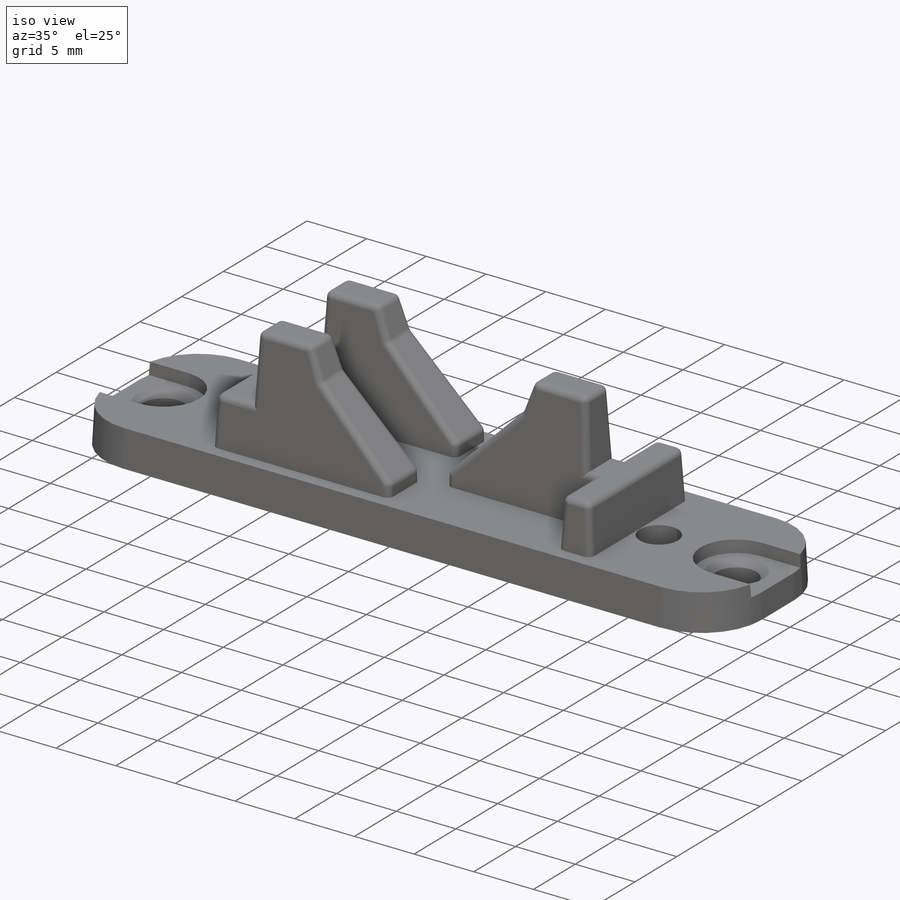
[diagram: iso view]
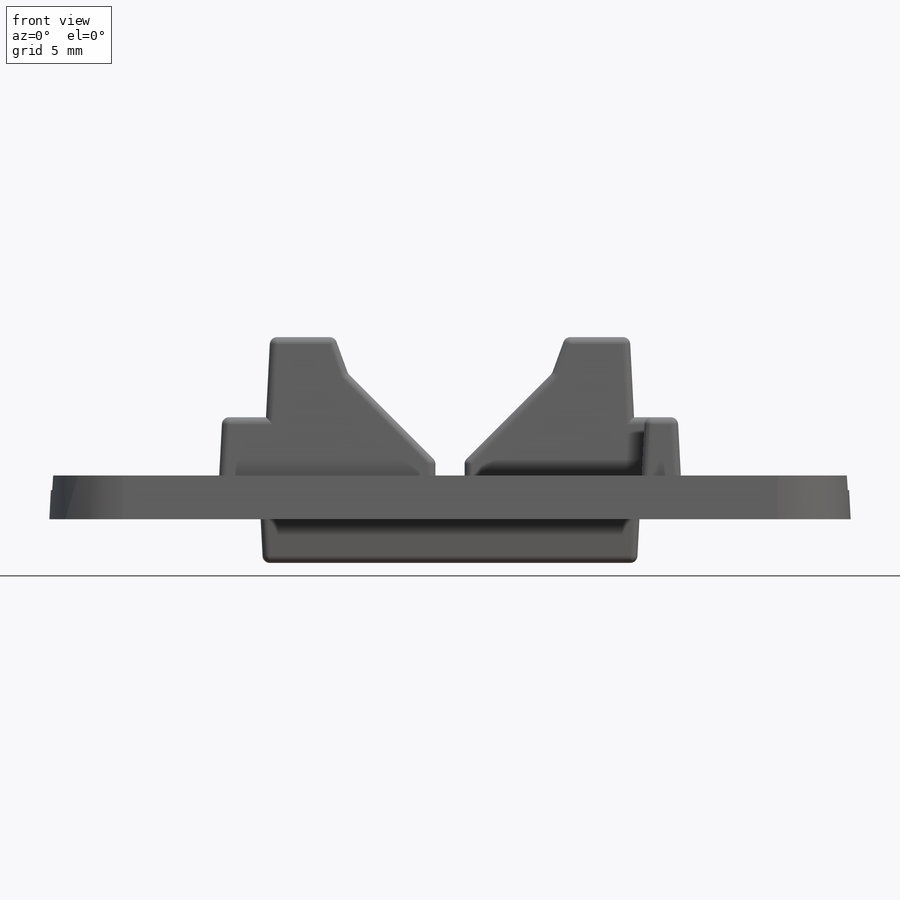
[diagram: front view]
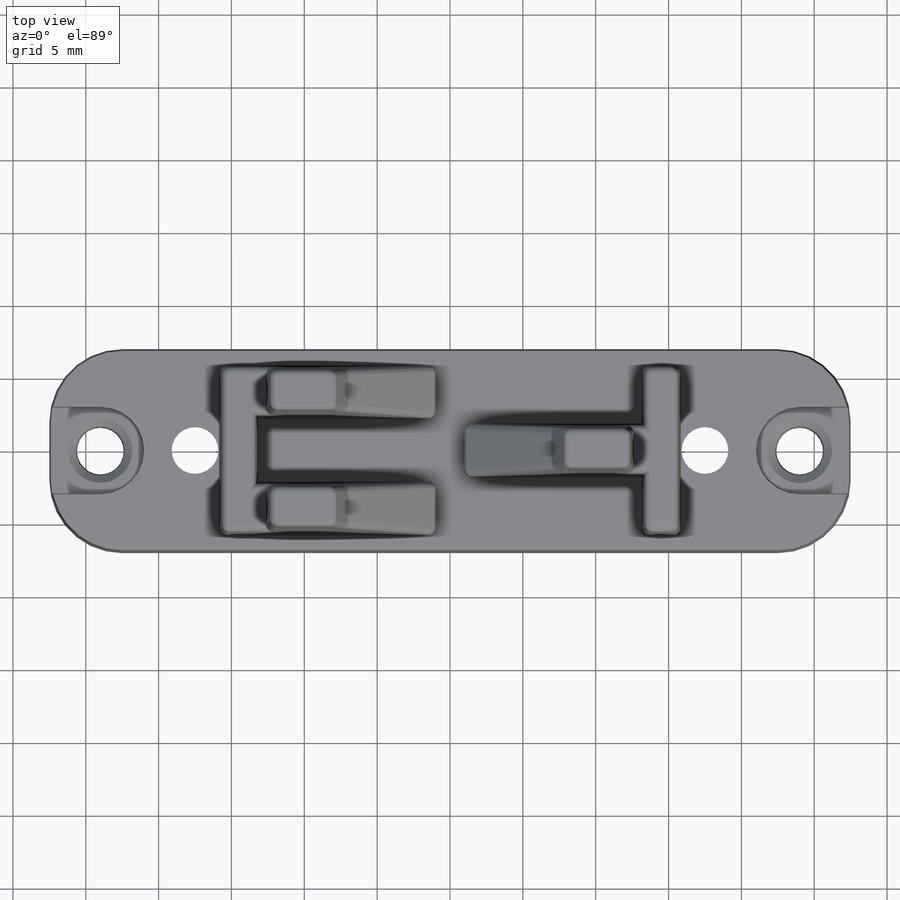
[diagram: top view]
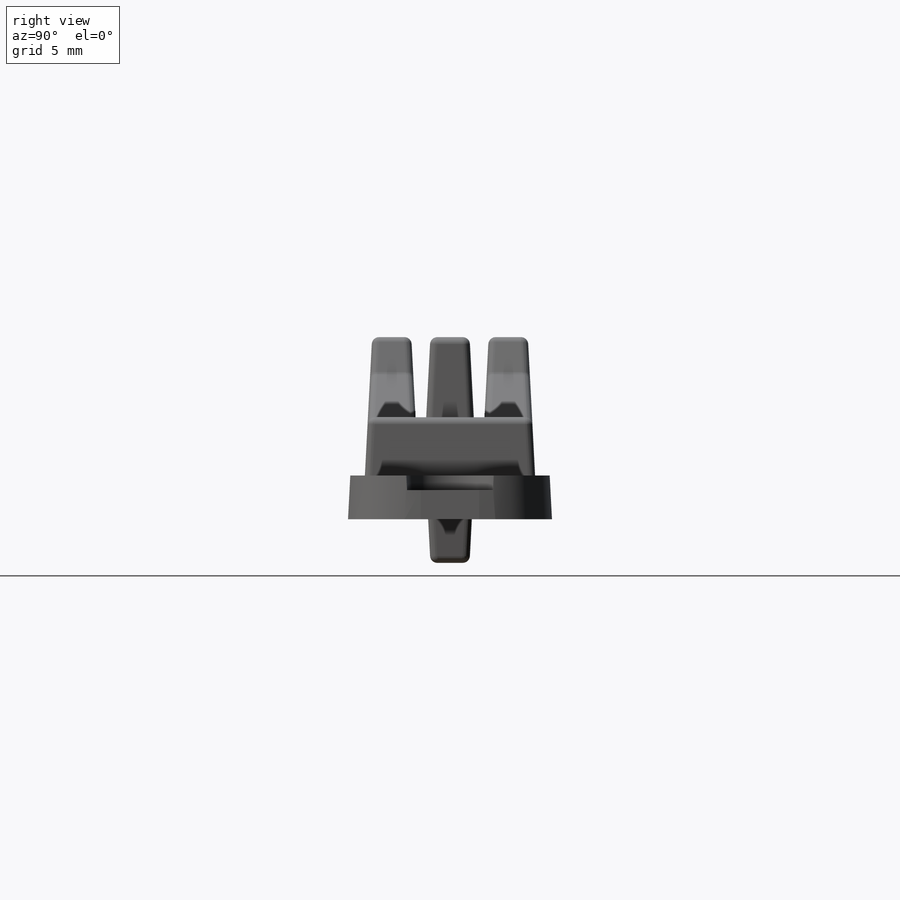
[diagram: right view]
SOLIDWORKS PART (.sldprt)
format: sldprt  version: not decoded by parser v0  size: 1,241,088 bytes
history: native  units: mm
features: sketch x14, extrude x7, cut_extrude x5, fillet x3, chamfer x2, material x1 (+11 scaffold rows collapsed)
feature tree (43):
  scaffold x11  (default folders/planes/origin — collapsed)
  material  "Material <not specified>"
  sketch  "Sketch1"  dims[D1=14.0mm D2=28.0mm]
  extrude  "Boss-Extrude1"  Depth=3mm
  sketch  "Sketch2"  dims[D1=4.0mm D2=1.0mm D3=1.0mm D4=2.0mm]
  extrude  "Boss-Extrude2"  Depth=7mm
  sketch  "Sketch3"  dims[D1=15.0mm]
  sketch  "Sketch4"
  cut_extrude  "Cut-Extrude1"  [1 undecoded]
  sketch  "Sketch5"  dims[D1=55.0mm]
  extrude  "Boss-Extrude3"  [1 undecoded]
  sketch  "Sketch6"  dims[D1=0.0mm D2=0.0mm D3=0.0mm]
  extrude  "Boss-Extrude4"  Depth=2.5mm
  sketch  "Sketch13"  dims[c1.D1=2.5mm c2.D1=20.0deg]
  cut_extrude  "Cut-Extrude5"  [1 undecoded]
  sketch  "Sketch8"  dims[D1=3.0mm]
  extrude  "Boss-Extrude5"  Depth=4mm
  sketch  "Sketch9"  dims[D1=3.2mm D2=35.0mm D3=48.0mm]
  cut_extrude  "Cut-Extrude2"  [1 undecoded]
  fillet  "Fillet1"  Radius=5mm
  sketch  "Sketch10"  dims[D1=3.0mm D2=26.0mm]
  extrude  "Boss-Extrude6"  Depth=3mm
  fillet  "Fillet2"  Radius=0.5mm
  fillet  "Fillet3"  Radius=0.5mm
  sketch  "Sketch12"  dims[D4=0.5mm D1=35.0mm D2=4.0mm D3=2.0mm]
  cut_extrude  "Cut-Extrude4"  Depth=0.5mm
  sketch  "Sketch14"  dims[D1=6.0mm]
  cut_extrude  "Cut-Extrude6"  Depth=1mm
  sketch  "Sketch15"  dims[D1=1.0mm D2=1.0mm D3=~34.947592mm]
  extrude  "Boss-Extrude7"  Depth=0.2mm
  sketch  "Sketch16"  dims[D1=1.0mm D2=~34.973796mm]
  chamfer  "Chamfer1"  Distance=0.5mm Angle=45deg
  chamfer  "Chamfer2"  Distance=0.5mm Angle=45deg
decode coverage: 26 of 31 modeling features carry decoded parameters
note: ~ marks probable driven/reference dimensions
note: 4 parameter values undecoded
summary: no parameter record found for 4 features
note: suppression state not decoded; provenance and decode notes live in map.json
